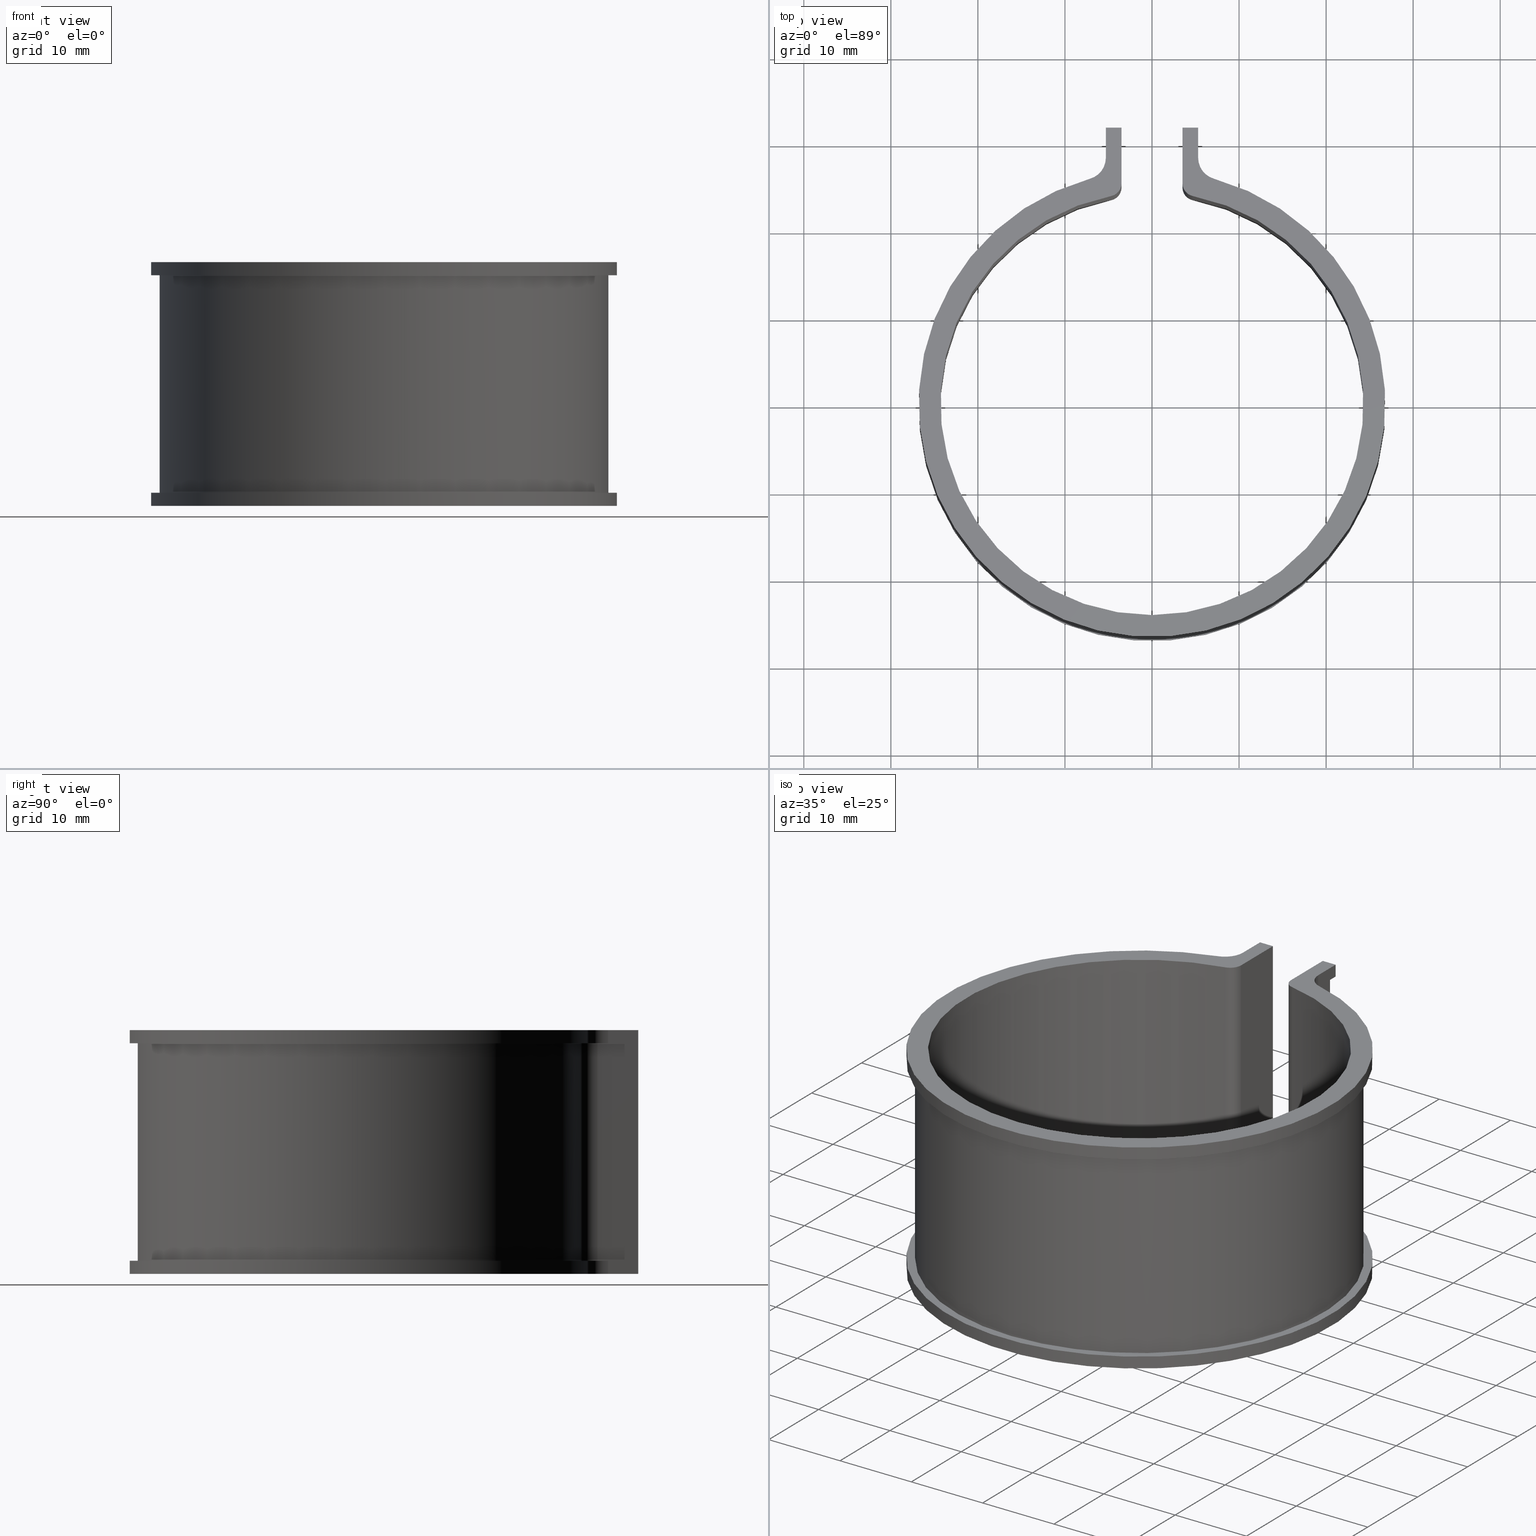
[diagram: canonical four-view strip — front | top / right | iso, engineering-drawing reading convention]
A machine part, canonical four-view strip (front | top / right | iso — engineering-drawing reading convention). The complete STEP part file that produces these views, byte-faithful:
ISO-10303-21;
HEADER;
FILE_DESCRIPTION( ( 'STEP AP203' ), '1' );
FILE_NAME( 'C:/Documents and Settings/JP/�f�X�N�g�b�v/�_�E�����[�h�pCAD�f�[�^/�p�C�v�}�[�J�[/50SU�ESG40/50SU�ESG40.step', '2022-07-20T05:44:30', ( ' ' ), ( ' ' ), 'XStep 1.0', ' ', ' ' );
FILE_SCHEMA( ( 'CONFIG_CONTROL_DESIGN' ) );
ENDSEC;
DATA;
#1 = DESIGN_CONTEXT( '', #27, 'design' );
#2 = APPLICATION_PROTOCOL_DEFINITION( 'INTERNATIONAL STANDARD', 'config_control_design', 1994, #27 );
#3 = PRODUCT_CATEGORY_RELATIONSHIP( 'NONE', 'NONE', #28, #29 );
#4 = DATE_AND_TIME( #30, #31 );
#5 = DATE_TIME_ROLE( 'creation_date' );
#6 = DATE_TIME_ROLE( 'classification_date' );
#7 = PERSON_AND_ORGANIZATION_ROLE( 'creator' );
#8 = PERSON_AND_ORGANIZATION_ROLE( 'design_supplier' );
#9 = PERSON_AND_ORGANIZATION_ROLE( 'classification_officer' );
#10 = PERSON_AND_ORGANIZATION_ROLE( 'design_owner' );
#11 = APPROVAL_PERSON_ORGANIZATION( #32, #33, #34 );
#12 = APPROVAL_DATE_TIME( #4, #33 );
#13 = CC_DESIGN_APPROVAL( #33, ( #35, #36, #37 ) );
#14 = CC_DESIGN_DATE_AND_TIME_ASSIGNMENT( #4, #5, ( #37 ) );
#15 = CC_DESIGN_DATE_AND_TIME_ASSIGNMENT( #4, #6, ( #35 ) );
#16 = CC_DESIGN_PERSON_AND_ORGANIZATION_ASSIGNMENT( #32, #10, ( #38 ) );
#17 = CC_DESIGN_PERSON_AND_ORGANIZATION_ASSIGNMENT( #32, #7, ( #37 ) );
#18 = CC_DESIGN_PERSON_AND_ORGANIZATION_ASSIGNMENT( #32, #7, ( #36 ) );
#19 = CC_DESIGN_PERSON_AND_ORGANIZATION_ASSIGNMENT( #32, #8, ( #36 ) );
#20 = CC_DESIGN_SECURITY_CLASSIFICATION( #35, ( #36 ) );
#21 = CC_DESIGN_PERSON_AND_ORGANIZATION_ASSIGNMENT( #32, #9, ( #35 ) );
#22 = SHAPE_DEFINITION_REPRESENTATION( #39, #40 );
#23 =  ( GEOMETRIC_REPRESENTATION_CONTEXT( 3 )GLOBAL_UNCERTAINTY_ASSIGNED_CONTEXT( ( #43 ) )GLOBAL_UNIT_ASSIGNED_CONTEXT( ( #45, #46, #47 ) )REPRESENTATION_CONTEXT( 'NONE', 'WORKSPACE' ) );
#27 = APPLICATION_CONTEXT( 'CONFIGURATION CONTROLLED 3D DESIGNS OF MECHANICAL PARTS AND ASSEMBLIES' );
#28 = PRODUCT_CATEGORY( 'part', 'NONE' );
#29 = PRODUCT_RELATED_PRODUCT_CATEGORY( 'detail', ' ', ( #38 ) );
#30 = CALENDAR_DATE( 2022, 20, 6 );
#31 = LOCAL_TIME( 14, 44, 30.0000000000000, #49 );
#32 = PERSON_AND_ORGANIZATION( #50, #51 );
#33 = APPROVAL( #52, 'SOLID MODEL' );
#34 = APPROVAL_ROLE( 'APPROVED' );
#35 = SECURITY_CLASSIFICATION( '', '', #53 );
#36 = PRODUCT_DEFINITION_FORMATION_WITH_SPECIFIED_SOURCE( ' ', 'NONE', #38, .NOT_KNOWN. );
#37 = PRODUCT_DEFINITION( 'NONE', 'NONE', #36, #1 );
#38 = PRODUCT( '1', '1', 'PART-1-DESC', ( #54 ) );
#39 = PRODUCT_DEFINITION_SHAPE( 'NONE', 'NONE', #37 );
#40 = ADVANCED_BREP_SHAPE_REPRESENTATION( '1', ( #55, #56 ), #23 );
#43 = UNCERTAINTY_MEASURE_WITH_UNIT( LENGTH_MEASURE( 0.00100000000000000 ), #45, '', '' );
#45 =  ( CONVERSION_BASED_UNIT( 'MILLIMETRE', #59 )LENGTH_UNIT(  )NAMED_UNIT( #62 ) );
#46 =  ( NAMED_UNIT( #64 )PLANE_ANGLE_UNIT(  )SI_UNIT( $, .RADIAN. ) );
#47 =  ( NAMED_UNIT( #64 )SOLID_ANGLE_UNIT(  )SI_UNIT( $, .STERADIAN. ) );
#49 = COORDINATED_UNIVERSAL_TIME_OFFSET( 9, 0, .AHEAD. );
#50 = PERSON( '', 'UNSPECIFIED', $, $, $, $ );
#51 = ORGANIZATION( 'UNSPECIFIED', 'UNSPECIFIED', 'UNSPECIFIED' );
#52 = APPROVAL_STATUS( 'approved' );
#53 = SECURITY_CLASSIFICATION_LEVEL( 'unclassified' );
#54 = MECHANICAL_CONTEXT( '', #27, 'mechanical' );
#55 = MANIFOLD_SOLID_BREP( '1', #70 );
#56 = AXIS2_PLACEMENT_3D( '', #71, #72, #73 );
#59 = LENGTH_MEASURE_WITH_UNIT( LENGTH_MEASURE( 1.00000000000000 ), #74 );
#62 = DIMENSIONAL_EXPONENTS( 1.00000000000000, 0.000000000000000, 0.000000000000000, 0.000000000000000, 0.000000000000000, 0.000000000000000, 0.000000000000000 );
#64 = DIMENSIONAL_EXPONENTS( 0.000000000000000, 0.000000000000000, 0.000000000000000, 0.000000000000000, 0.000000000000000, 0.000000000000000, 0.000000000000000 );
#70 = CLOSED_SHELL( '', ( #75, #76, #77, #78, #79, #80, #81, #82, #83, #84, #85, #86, #87, #88, #89, #90, #91, #92, #93, #94, #95, #96, #97, #98, #99, #100 ) );
#71 = CARTESIAN_POINT( '', ( 0.000000000000000, 0.000000000000000, 0.000000000000000 ) );
#72 = DIRECTION( '', ( 0.000000000000000, 0.000000000000000, 1.00000000000000 ) );
#73 = DIRECTION( '', ( 1.00000000000000, 0.000000000000000, 0.000000000000000 ) );
#74 =  ( NAMED_UNIT( #62 )LENGTH_UNIT(  )SI_UNIT( .MILLI., .METRE. ) );
#75 = ADVANCED_FACE( '', ( #102 ), #103, .T. );
#76 = ADVANCED_FACE( '', ( #104 ), #105, .T. );
#77 = ADVANCED_FACE( '', ( #106 ), #107, .F. );
#78 = ADVANCED_FACE( '', ( #108 ), #109, .F. );
#79 = ADVANCED_FACE( '', ( #110 ), #111, .F. );
#80 = ADVANCED_FACE( '', ( #112 ), #113, .F. );
#81 = ADVANCED_FACE( '', ( #114 ), #115, .T. );
#82 = ADVANCED_FACE( '', ( #116 ), #117, .T. );
#83 = ADVANCED_FACE( '', ( #118 ), #119, .T. );
#84 = ADVANCED_FACE( '', ( #120 ), #121, .F. );
#85 = ADVANCED_FACE( '', ( #122 ), #123, .T. );
#86 = ADVANCED_FACE( '', ( #124 ), #125, .F. );
#87 = ADVANCED_FACE( '', ( #126 ), #127, .F. );
#88 = ADVANCED_FACE( '', ( #128 ), #129, .T. );
#89 = ADVANCED_FACE( '', ( #130 ), #131, .F. );
#90 = ADVANCED_FACE( '', ( #132 ), #133, .T. );
#91 = ADVANCED_FACE( '', ( #134 ), #135, .T. );
#92 = ADVANCED_FACE( '', ( #136 ), #137, .T. );
#93 = ADVANCED_FACE( '', ( #138 ), #139, .F. );
#94 = ADVANCED_FACE( '', ( #140 ), #141, .T. );
#95 = ADVANCED_FACE( '', ( #142 ), #143, .T. );
#96 = ADVANCED_FACE( '', ( #144 ), #145, .T. );
#97 = ADVANCED_FACE( '', ( #146 ), #147, .T. );
#98 = ADVANCED_FACE( '', ( #148 ), #149, .T. );
#99 = ADVANCED_FACE( '', ( #150 ), #151, .F. );
#100 = ADVANCED_FACE( '', ( #152 ), #153, .F. );
#102 = FACE_OUTER_BOUND( '', #154, .T. );
#103 = PLANE( '', #155 );
#104 = FACE_OUTER_BOUND( '', #156, .T. );
#105 = PLANE( '', #157 );
#106 = FACE_OUTER_BOUND( '', #158, .T. );
#107 = PLANE( '', #159 );
#108 = FACE_OUTER_BOUND( '', #160, .T. );
#109 = PLANE( '', #161 );
#110 = FACE_OUTER_BOUND( '', #162, .T. );
#111 = PLANE( '', #163 );
#112 = FACE_OUTER_BOUND( '', #164, .T. );
#113 = CYLINDRICAL_SURFACE( '', #165, 24.3000000000000 );
#114 = FACE_OUTER_BOUND( '', #166, .T. );
#115 = CYLINDRICAL_SURFACE( '', #167, 1.50000000000000 );
#116 = FACE_OUTER_BOUND( '', #168, .T. );
#117 = PLANE( '', #169 );
#118 = FACE_OUTER_BOUND( '', #170, .T. );
#119 = PLANE( '', #171 );
#120 = FACE_OUTER_BOUND( '', #172, .T. );
#121 = CYLINDRICAL_SURFACE( '', #173, 2.50000000000000 );
#122 = FACE_OUTER_BOUND( '', #174, .T. );
#123 = CYLINDRICAL_SURFACE( '', #175, 26.8000000000000 );
#124 = FACE_OUTER_BOUND( '', #176, .T. );
#125 = CYLINDRICAL_SURFACE( '', #177, 2.50000000000000 );
#126 = FACE_OUTER_BOUND( '', #178, .T. );
#127 = PLANE( '', #179 );
#128 = FACE_OUTER_BOUND( '', #180, .T. );
#129 = CYLINDRICAL_SURFACE( '', #181, 1.50000000000000 );
#130 = FACE_OUTER_BOUND( '', #182, .T. );
#131 = CYLINDRICAL_SURFACE( '', #183, 2.50000000000000 );
#132 = FACE_OUTER_BOUND( '', #184, .T. );
#133 = PLANE( '', #185 );
#134 = FACE_OUTER_BOUND( '', #186, .T. );
#135 = PLANE( '', #187 );
#136 = FACE_OUTER_BOUND( '', #188, .T. );
#137 = PLANE( '', #189 );
#138 = FACE_OUTER_BOUND( '', #190, .T. );
#139 = CYLINDRICAL_SURFACE( '', #191, 2.50000000000000 );
#140 = FACE_OUTER_BOUND( '', #192, .T. );
#141 = CYLINDRICAL_SURFACE( '', #193, 26.8000000000000 );
#142 = FACE_OUTER_BOUND( '', #194, .T. );
#143 = PLANE( '', #195 );
#144 = FACE_OUTER_BOUND( '', #196, .T. );
#145 = PLANE( '', #197 );
#146 = FACE_OUTER_BOUND( '', #198, .T. );
#147 = CYLINDRICAL_SURFACE( '', #199, 25.8000000000000 );
#148 = FACE_OUTER_BOUND( '', #200, .T. );
#149 = PLANE( '', #201 );
#150 = FACE_OUTER_BOUND( '', #202, .T. );
#151 = CYLINDRICAL_SURFACE( '', #203, 2.00000000000000 );
#152 = FACE_OUTER_BOUND( '', #204, .T. );
#153 = CYLINDRICAL_SURFACE( '', #205, 2.00000000000000 );
#154 = EDGE_LOOP( '', ( #206, #207, #208, #209 ) );
#155 = AXIS2_PLACEMENT_3D( '', #210, #211, #212 );
#156 = EDGE_LOOP( '', ( #213, #214, #215, #216, #217, #218, #219, #220 ) );
#157 = AXIS2_PLACEMENT_3D( '', #221, #222, #223 );
#158 = EDGE_LOOP( '', ( #224, #225, #226, #227 ) );
#159 = AXIS2_PLACEMENT_3D( '', #228, #229, #230 );
#160 = EDGE_LOOP( '', ( #231, #232, #233, #234, #235, #236, #237, #238, #239, #240, #241, #242 ) );
#161 = AXIS2_PLACEMENT_3D( '', #243, #244, #245 );
#162 = EDGE_LOOP( '', ( #246, #247, #248, #249, #250, #251, #252, #253, #254, #255, #256, #257 ) );
#163 = AXIS2_PLACEMENT_3D( '', #258, #259, #260 );
#164 = EDGE_LOOP( '', ( #261, #262, #263, #264 ) );
#165 = AXIS2_PLACEMENT_3D( '', #265, #266, #267 );
#166 = EDGE_LOOP( '', ( #268, #269, #270, #271 ) );
#167 = AXIS2_PLACEMENT_3D( '', #272, #273, #274 );
#168 = EDGE_LOOP( '', ( #275, #276, #277, #278, #279, #280, #281, #282, #283, #284, #285, #286 ) );
#169 = AXIS2_PLACEMENT_3D( '', #287, #288, #289 );
#170 = EDGE_LOOP( '', ( #290, #291, #292, #293 ) );
#171 = AXIS2_PLACEMENT_3D( '', #294, #295, #296 );
#172 = EDGE_LOOP( '', ( #297, #298, #299, #300 ) );
#173 = AXIS2_PLACEMENT_3D( '', #301, #302, #303 );
#174 = EDGE_LOOP( '', ( #304, #305, #306, #307 ) );
#175 = AXIS2_PLACEMENT_3D( '', #308, #309, #310 );
#176 = EDGE_LOOP( '', ( #311, #312, #313, #314 ) );
#177 = AXIS2_PLACEMENT_3D( '', #315, #316, #317 );
#178 = EDGE_LOOP( '', ( #318, #319, #320, #321 ) );
#179 = AXIS2_PLACEMENT_3D( '', #322, #323, #324 );
#180 = EDGE_LOOP( '', ( #325, #326, #327, #328 ) );
#181 = AXIS2_PLACEMENT_3D( '', #329, #330, #331 );
#182 = EDGE_LOOP( '', ( #332, #333, #334, #335 ) );
#183 = AXIS2_PLACEMENT_3D( '', #336, #337, #338 );
#184 = EDGE_LOOP( '', ( #339, #340, #341, #342, #343, #344, #345, #346 ) );
#185 = AXIS2_PLACEMENT_3D( '', #347, #348, #349 );
#186 = EDGE_LOOP( '', ( #350, #351, #352, #353, #354, #355, #356, #357, #358, #359, #360, #361 ) );
#187 = AXIS2_PLACEMENT_3D( '', #362, #363, #364 );
#188 = EDGE_LOOP( '', ( #365, #366, #367, #368 ) );
#189 = AXIS2_PLACEMENT_3D( '', #369, #370, #371 );
#190 = EDGE_LOOP( '', ( #372, #373, #374, #375 ) );
#191 = AXIS2_PLACEMENT_3D( '', #376, #377, #378 );
#192 = EDGE_LOOP( '', ( #379, #380, #381, #382 ) );
#193 = AXIS2_PLACEMENT_3D( '', #383, #384, #385 );
#194 = EDGE_LOOP( '', ( #386, #387, #388, #389 ) );
#195 = AXIS2_PLACEMENT_3D( '', #390, #391, #392 );
#196 = EDGE_LOOP( '', ( #393, #394, #395, #396 ) );
#197 = AXIS2_PLACEMENT_3D( '', #397, #398, #399 );
#198 = EDGE_LOOP( '', ( #400, #401, #402, #403 ) );
#199 = AXIS2_PLACEMENT_3D( '', #404, #405, #406 );
#200 = EDGE_LOOP( '', ( #407, #408, #409, #410 ) );
#201 = AXIS2_PLACEMENT_3D( '', #411, #412, #413 );
#202 = EDGE_LOOP( '', ( #414, #415, #416, #417 ) );
#203 = AXIS2_PLACEMENT_3D( '', #418, #419, #420 );
#204 = EDGE_LOOP( '', ( #421, #422, #423, #424 ) );
#205 = AXIS2_PLACEMENT_3D( '', #425, #426, #427 );
#206 = ORIENTED_EDGE( '', *, *, #428, .T. );
#207 = ORIENTED_EDGE( '', *, *, #429, .T. );
#208 = ORIENTED_EDGE( '', *, *, #430, .F. );
#209 = ORIENTED_EDGE( '', *, *, #431, .F. );
#210 = CARTESIAN_POINT( '', ( 3.50000000000001, 31.7045271556076, -25.0000000000000 ) );
#211 = DIRECTION( '', ( -1.00000000000000, 8.32667268468868E-017, 0.000000000000000 ) );
#212 = DIRECTION( '', ( 8.32667268468868E-017, 1.00000000000000, 0.000000000000000 ) );
#213 = ORIENTED_EDGE( '', *, *, #432, .T. );
#214 = ORIENTED_EDGE( '', *, *, #433, .T. );
#215 = ORIENTED_EDGE( '', *, *, #434, .F. );
#216 = ORIENTED_EDGE( '', *, *, #435, .F. );
#217 = ORIENTED_EDGE( '', *, *, #436, .F. );
#218 = ORIENTED_EDGE( '', *, *, #437, .T. );
#219 = ORIENTED_EDGE( '', *, *, #438, .T. );
#220 = ORIENTED_EDGE( '', *, *, #439, .F. );
#221 = CARTESIAN_POINT( '', ( -3.50000000000001, 31.7045271556075, -25.0000000000000 ) );
#222 = DIRECTION( '', ( 2.46519032881566E-032, 1.00000000000000, 0.000000000000000 ) );
#223 = DIRECTION( '', ( 1.00000000000000, -2.46519032881566E-032, 0.000000000000000 ) );
#224 = ORIENTED_EDGE( '', *, *, #440, .T. );
#225 = ORIENTED_EDGE( '', *, *, #441, .T. );
#226 = ORIENTED_EDGE( '', *, *, #442, .F. );
#227 = ORIENTED_EDGE( '', *, *, #434, .T. );
#228 = CARTESIAN_POINT( '', ( -5.30000000000000, 31.7045271556075, 1.50000000000000 ) );
#229 = DIRECTION( '', ( 1.00000000000000, -6.12303176911189E-017, 0.000000000000000 ) );
#230 = DIRECTION( '', ( 6.12303176911189E-017, 1.00000000000000, 0.000000000000000 ) );
#231 = ORIENTED_EDGE( '', *, *, #443, .T. );
#232 = ORIENTED_EDGE( '', *, *, #444, .T. );
#233 = ORIENTED_EDGE( '', *, *, #445, .T. );
#234 = ORIENTED_EDGE( '', *, *, #446, .F. );
#235 = ORIENTED_EDGE( '', *, *, #447, .F. );
#236 = ORIENTED_EDGE( '', *, *, #448, .T. );
#237 = ORIENTED_EDGE( '', *, *, #449, .F. );
#238 = ORIENTED_EDGE( '', *, *, #450, .T. );
#239 = ORIENTED_EDGE( '', *, *, #440, .F. );
#240 = ORIENTED_EDGE( '', *, *, #433, .F. );
#241 = ORIENTED_EDGE( '', *, *, #451, .T. );
#242 = ORIENTED_EDGE( '', *, *, #452, .T. );
#243 = CARTESIAN_POINT( '', ( 0.000000000000000, 0.000000000000000, 0.000000000000000 ) );
#244 = DIRECTION( '', ( 0.000000000000000, 0.000000000000000, 1.00000000000000 ) );
#245 = DIRECTION( '', ( 0.000000000000000, 1.00000000000000, 0.000000000000000 ) );
#246 = ORIENTED_EDGE( '', *, *, #453, .F. );
#247 = ORIENTED_EDGE( '', *, *, #454, .T. );
#248 = ORIENTED_EDGE( '', *, *, #455, .F. );
#249 = ORIENTED_EDGE( '', *, *, #456, .T. );
#250 = ORIENTED_EDGE( '', *, *, #428, .F. );
#251 = ORIENTED_EDGE( '', *, *, #457, .F. );
#252 = ORIENTED_EDGE( '', *, *, #458, .F. );
#253 = ORIENTED_EDGE( '', *, *, #459, .T. );
#254 = ORIENTED_EDGE( '', *, *, #460, .F. );
#255 = ORIENTED_EDGE( '', *, *, #461, .T. );
#256 = ORIENTED_EDGE( '', *, *, #462, .F. );
#257 = ORIENTED_EDGE( '', *, *, #437, .F. );
#258 = CARTESIAN_POINT( '', ( 0.000000000000000, 0.000000000000000, -26.5000000000000 ) );
#259 = DIRECTION( '', ( 0.000000000000000, 0.000000000000000, 1.00000000000000 ) );
#260 = DIRECTION( '', ( 0.000000000000000, 1.00000000000000, 0.000000000000000 ) );
#261 = ORIENTED_EDGE( '', *, *, #455, .T. );
#262 = ORIENTED_EDGE( '', *, *, #463, .T. );
#263 = ORIENTED_EDGE( '', *, *, #464, .F. );
#264 = ORIENTED_EDGE( '', *, *, #465, .T. );
#265 = CARTESIAN_POINT( '', ( 2.60208521396521E-015, 1.38777878078145E-014, -25.0000000000000 ) );
#266 = DIRECTION( '', ( 0.000000000000000, 0.000000000000000, -1.00000000000000 ) );
#267 = DIRECTION( '', ( -0.144032921810699, -0.989572896473359, 0.000000000000000 ) );
#268 = ORIENTED_EDGE( '', *, *, #454, .F. );
#269 = ORIENTED_EDGE( '', *, *, #466, .F. );
#270 = ORIENTED_EDGE( '', *, *, #467, .F. );
#271 = ORIENTED_EDGE( '', *, *, #463, .F. );
#272 = CARTESIAN_POINT( '', ( -5.00000000000000, 25.3108672312902, -25.0000000000000 ) );
#273 = DIRECTION( '', ( 0.000000000000000, 0.000000000000000, -1.00000000000000 ) );
#274 = DIRECTION( '', ( 1.00000000000000, 0.000000000000000, 0.000000000000000 ) );
#275 = ORIENTED_EDGE( '', *, *, #464, .T. );
#276 = ORIENTED_EDGE( '', *, *, #467, .T. );
#277 = ORIENTED_EDGE( '', *, *, #468, .T. );
#278 = ORIENTED_EDGE( '', *, *, #435, .T. );
#279 = ORIENTED_EDGE( '', *, *, #442, .T. );
#280 = ORIENTED_EDGE( '', *, *, #469, .T. );
#281 = ORIENTED_EDGE( '', *, *, #470, .T. );
#282 = ORIENTED_EDGE( '', *, *, #471, .T. );
#283 = ORIENTED_EDGE( '', *, *, #472, .T. );
#284 = ORIENTED_EDGE( '', *, *, #473, .T. );
#285 = ORIENTED_EDGE( '', *, *, #430, .T. );
#286 = ORIENTED_EDGE( '', *, *, #474, .T. );
#287 = CARTESIAN_POINT( '', ( 0.000000000000000, 0.000000000000000, 1.50000000000000 ) );
#288 = DIRECTION( '', ( 0.000000000000000, 0.000000000000000, 1.00000000000000 ) );
#289 = DIRECTION( '', ( 0.000000000000000, 1.00000000000000, 0.000000000000000 ) );
#290 = ORIENTED_EDGE( '', *, *, #468, .F. );
#291 = ORIENTED_EDGE( '', *, *, #466, .T. );
#292 = ORIENTED_EDGE( '', *, *, #453, .T. );
#293 = ORIENTED_EDGE( '', *, *, #436, .T. );
#294 = CARTESIAN_POINT( '', ( -3.49999999999999, 24.0466213843026, -25.0000000000000 ) );
#295 = DIRECTION( '', ( 1.00000000000000, -8.32667268468868E-017, 0.000000000000000 ) );
#296 = DIRECTION( '', ( -8.32667268468868E-017, -1.00000000000000, 0.000000000000000 ) );
#297 = ORIENTED_EDGE( '', *, *, #469, .F. );
#298 = ORIENTED_EDGE( '', *, *, #441, .F. );
#299 = ORIENTED_EDGE( '', *, *, #450, .F. );
#300 = ORIENTED_EDGE( '', *, *, #475, .F. );
#301 = CARTESIAN_POINT( '', ( -7.80000000000000, 28.2426981713858, 1.50000000000000 ) );
#302 = DIRECTION( '', ( 0.000000000000000, 0.000000000000000, 1.00000000000000 ) );
#303 = DIRECTION( '', ( -1.00000000000000, 0.000000000000000, 0.000000000000000 ) );
#304 = ORIENTED_EDGE( '', *, *, #470, .F. );
#305 = ORIENTED_EDGE( '', *, *, #475, .T. );
#306 = ORIENTED_EDGE( '', *, *, #449, .T. );
#307 = ORIENTED_EDGE( '', *, *, #476, .T. );
#308 = CARTESIAN_POINT( '', ( 0.000000000000000, 0.000000000000000, 1.50000000000000 ) );
#309 = DIRECTION( '', ( 0.000000000000000, 0.000000000000000, 1.00000000000000 ) );
#310 = DIRECTION( '', ( 0.000000000000000, -1.00000000000000, 0.000000000000000 ) );
#311 = ORIENTED_EDGE( '', *, *, #471, .F. );
#312 = ORIENTED_EDGE( '', *, *, #476, .F. );
#313 = ORIENTED_EDGE( '', *, *, #448, .F. );
#314 = ORIENTED_EDGE( '', *, *, #477, .F. );
#315 = CARTESIAN_POINT( '', ( 7.80000000000000, 28.2426981713858, 1.50000000000000 ) );
#316 = DIRECTION( '', ( 0.000000000000000, 0.000000000000000, 1.00000000000000 ) );
#317 = DIRECTION( '', ( -1.00000000000000, 0.000000000000000, 0.000000000000000 ) );
#318 = ORIENTED_EDGE( '', *, *, #472, .F. );
#319 = ORIENTED_EDGE( '', *, *, #477, .T. );
#320 = ORIENTED_EDGE( '', *, *, #447, .T. );
#321 = ORIENTED_EDGE( '', *, *, #478, .F. );
#322 = CARTESIAN_POINT( '', ( 5.30000000000000, 26.2707061191739, 1.50000000000000 ) );
#323 = DIRECTION( '', ( -1.00000000000000, 6.12303176911189E-017, 0.000000000000000 ) );
#324 = DIRECTION( '', ( -6.12303176911189E-017, -1.00000000000000, 0.000000000000000 ) );
#325 = ORIENTED_EDGE( '', *, *, #456, .F. );
#326 = ORIENTED_EDGE( '', *, *, #465, .F. );
#327 = ORIENTED_EDGE( '', *, *, #474, .F. );
#328 = ORIENTED_EDGE( '', *, *, #429, .F. );
#329 = CARTESIAN_POINT( '', ( 5.00000000000001, 25.3108672312902, -25.0000000000000 ) );
#330 = DIRECTION( '', ( 0.000000000000000, 0.000000000000000, -1.00000000000000 ) );
#331 = DIRECTION( '', ( 1.00000000000000, 0.000000000000000, 0.000000000000000 ) );
#332 = ORIENTED_EDGE( '', *, *, #459, .F. );
#333 = ORIENTED_EDGE( '', *, *, #479, .F. );
#334 = ORIENTED_EDGE( '', *, *, #480, .F. );
#335 = ORIENTED_EDGE( '', *, *, #481, .F. );
#336 = CARTESIAN_POINT( '', ( 7.80000000000000, 28.2426981713858, -26.5000000000000 ) );
#337 = DIRECTION( '', ( 0.000000000000000, 0.000000000000000, -1.00000000000000 ) );
#338 = DIRECTION( '', ( 1.00000000000000, 0.000000000000000, 0.000000000000000 ) );
#339 = ORIENTED_EDGE( '', *, *, #431, .T. );
#340 = ORIENTED_EDGE( '', *, *, #473, .F. );
#341 = ORIENTED_EDGE( '', *, *, #478, .T. );
#342 = ORIENTED_EDGE( '', *, *, #446, .T. );
#343 = ORIENTED_EDGE( '', *, *, #482, .F. );
#344 = ORIENTED_EDGE( '', *, *, #483, .F. );
#345 = ORIENTED_EDGE( '', *, *, #484, .F. );
#346 = ORIENTED_EDGE( '', *, *, #457, .T. );
#347 = CARTESIAN_POINT( '', ( 4.49999999999999, 31.7045271556075, -25.0000000000000 ) );
#348 = DIRECTION( '', ( 2.46519032881566E-032, 1.00000000000000, 0.000000000000000 ) );
#349 = DIRECTION( '', ( 1.00000000000000, -2.46519032881566E-032, 0.000000000000000 ) );
#350 = ORIENTED_EDGE( '', *, *, #485, .F. );
#351 = ORIENTED_EDGE( '', *, *, #486, .T. );
#352 = ORIENTED_EDGE( '', *, *, #487, .F. );
#353 = ORIENTED_EDGE( '', *, *, #488, .T. );
#354 = ORIENTED_EDGE( '', *, *, #489, .F. );
#355 = ORIENTED_EDGE( '', *, *, #439, .T. );
#356 = ORIENTED_EDGE( '', *, *, #490, .T. );
#357 = ORIENTED_EDGE( '', *, *, #491, .T. );
#358 = ORIENTED_EDGE( '', *, *, #492, .T. );
#359 = ORIENTED_EDGE( '', *, *, #480, .T. );
#360 = ORIENTED_EDGE( '', *, *, #493, .T. );
#361 = ORIENTED_EDGE( '', *, *, #483, .T. );
#362 = CARTESIAN_POINT( '', ( 0.000000000000000, 0.000000000000000, -25.0000000000000 ) );
#363 = DIRECTION( '', ( 0.000000000000000, 0.000000000000000, 1.00000000000000 ) );
#364 = DIRECTION( '', ( 0.000000000000000, 1.00000000000000, 0.000000000000000 ) );
#365 = ORIENTED_EDGE( '', *, *, #462, .T. );
#366 = ORIENTED_EDGE( '', *, *, #494, .T. );
#367 = ORIENTED_EDGE( '', *, *, #490, .F. );
#368 = ORIENTED_EDGE( '', *, *, #438, .F. );
#369 = CARTESIAN_POINT( '', ( -5.30000000000000, 31.7045271556075, -26.5000000000000 ) );
#370 = DIRECTION( '', ( -1.00000000000000, 6.12303176911189E-017, 0.000000000000000 ) );
#371 = DIRECTION( '', ( 6.12303176911189E-017, 1.00000000000000, 0.000000000000000 ) );
#372 = ORIENTED_EDGE( '', *, *, #461, .F. );
#373 = ORIENTED_EDGE( '', *, *, #495, .F. );
#374 = ORIENTED_EDGE( '', *, *, #491, .F. );
#375 = ORIENTED_EDGE( '', *, *, #494, .F. );
#376 = CARTESIAN_POINT( '', ( -7.80000000000000, 28.2426981713858, -26.5000000000000 ) );
#377 = DIRECTION( '', ( 0.000000000000000, 0.000000000000000, -1.00000000000000 ) );
#378 = DIRECTION( '', ( 1.00000000000000, 0.000000000000000, 0.000000000000000 ) );
#379 = ORIENTED_EDGE( '', *, *, #492, .F. );
#380 = ORIENTED_EDGE( '', *, *, #495, .T. );
#381 = ORIENTED_EDGE( '', *, *, #460, .T. );
#382 = ORIENTED_EDGE( '', *, *, #481, .T. );
#383 = CARTESIAN_POINT( '', ( 0.000000000000000, 0.000000000000000, -26.5000000000000 ) );
#384 = DIRECTION( '', ( 0.000000000000000, 0.000000000000000, -1.00000000000000 ) );
#385 = DIRECTION( '', ( 0.000000000000000, 1.00000000000000, 0.000000000000000 ) );
#386 = ORIENTED_EDGE( '', *, *, #493, .F. );
#387 = ORIENTED_EDGE( '', *, *, #479, .T. );
#388 = ORIENTED_EDGE( '', *, *, #458, .T. );
#389 = ORIENTED_EDGE( '', *, *, #484, .T. );
#390 = CARTESIAN_POINT( '', ( 5.30000000000000, 26.2707061191739, -26.5000000000000 ) );
#391 = DIRECTION( '', ( 1.00000000000000, -6.12303176911189E-017, 0.000000000000000 ) );
#392 = DIRECTION( '', ( -6.12303176911189E-017, -1.00000000000000, 0.000000000000000 ) );
#393 = ORIENTED_EDGE( '', *, *, #489, .T. );
#394 = ORIENTED_EDGE( '', *, *, #496, .T. );
#395 = ORIENTED_EDGE( '', *, *, #451, .F. );
#396 = ORIENTED_EDGE( '', *, *, #432, .F. );
#397 = CARTESIAN_POINT( '', ( -4.50000000000000, 31.7045271556076, -25.0000000000000 ) );
#398 = DIRECTION( '', ( -1.00000000000000, 8.32667268468868E-017, 0.000000000000000 ) );
#399 = DIRECTION( '', ( 8.32667268468868E-017, 1.00000000000000, 0.000000000000000 ) );
#400 = ORIENTED_EDGE( '', *, *, #487, .T. );
#401 = ORIENTED_EDGE( '', *, *, #497, .T. );
#402 = ORIENTED_EDGE( '', *, *, #443, .F. );
#403 = ORIENTED_EDGE( '', *, *, #498, .T. );
#404 = CARTESIAN_POINT( '', ( 2.60208521396521E-015, 1.38777878078145E-014, -25.0000000000000 ) );
#405 = DIRECTION( '', ( 0.000000000000000, 0.000000000000000, -1.00000000000000 ) );
#406 = DIRECTION( '', ( -0.144032921810699, -0.989572896473359, 0.000000000000000 ) );
#407 = ORIENTED_EDGE( '', *, *, #445, .F. );
#408 = ORIENTED_EDGE( '', *, *, #499, .T. );
#409 = ORIENTED_EDGE( '', *, *, #485, .T. );
#410 = ORIENTED_EDGE( '', *, *, #482, .T. );
#411 = CARTESIAN_POINT( '', ( 4.50000000000000, 25.4045271556075, -25.0000000000000 ) );
#412 = DIRECTION( '', ( 1.00000000000000, -8.32667268468868E-017, 0.000000000000000 ) );
#413 = DIRECTION( '', ( -8.32667268468868E-017, -1.00000000000000, 0.000000000000000 ) );
#414 = ORIENTED_EDGE( '', *, *, #486, .F. );
#415 = ORIENTED_EDGE( '', *, *, #499, .F. );
#416 = ORIENTED_EDGE( '', *, *, #444, .F. );
#417 = ORIENTED_EDGE( '', *, *, #497, .F. );
#418 = CARTESIAN_POINT( '', ( 6.50000000000001, 27.0294284068310, -25.0000000000000 ) );
#419 = DIRECTION( '', ( 0.000000000000000, 0.000000000000000, -1.00000000000000 ) );
#420 = DIRECTION( '', ( 1.00000000000000, 0.000000000000000, 0.000000000000000 ) );
#421 = ORIENTED_EDGE( '', *, *, #488, .F. );
#422 = ORIENTED_EDGE( '', *, *, #498, .F. );
#423 = ORIENTED_EDGE( '', *, *, #452, .F. );
#424 = ORIENTED_EDGE( '', *, *, #496, .F. );
#425 = CARTESIAN_POINT( '', ( -6.50000000000000, 27.0294284068310, -25.0000000000000 ) );
#426 = DIRECTION( '', ( 0.000000000000000, 0.000000000000000, -1.00000000000000 ) );
#427 = DIRECTION( '', ( 1.00000000000000, 0.000000000000000, 0.000000000000000 ) );
#428 = EDGE_CURVE( '', #500, #501, #502, .T. );
#429 = EDGE_CURVE( '', #501, #503, #504, .T. );
#430 = EDGE_CURVE( '', #505, #503, #506, .T. );
#431 = EDGE_CURVE( '', #500, #505, #507, .T. );
#432 = EDGE_CURVE( '', #508, #509, #510, .T. );
#433 = EDGE_CURVE( '', #509, #511, #512, .T. );
#434 = EDGE_CURVE( '', #513, #511, #514, .T. );
#435 = EDGE_CURVE( '', #515, #513, #516, .T. );
#436 = EDGE_CURVE( '', #517, #515, #518, .T. );
#437 = EDGE_CURVE( '', #517, #519, #520, .T. );
#438 = EDGE_CURVE( '', #519, #521, #522, .T. );
#439 = EDGE_CURVE( '', #508, #521, #523, .T. );
#440 = EDGE_CURVE( '', #511, #524, #525, .T. );
#441 = EDGE_CURVE( '', #524, #526, #527, .T. );
#442 = EDGE_CURVE( '', #513, #526, #528, .T. );
#443 = EDGE_CURVE( '', #529, #530, #531, .T. );
#444 = EDGE_CURVE( '', #530, #532, #533, .F. );
#445 = EDGE_CURVE( '', #532, #534, #535, .T. );
#446 = EDGE_CURVE( '', #536, #534, #537, .T. );
#447 = EDGE_CURVE( '', #538, #536, #539, .T. );
#448 = EDGE_CURVE( '', #538, #540, #541, .T. );
#449 = EDGE_CURVE( '', #542, #540, #543, .T. );
#450 = EDGE_CURVE( '', #542, #524, #544, .T. );
#451 = EDGE_CURVE( '', #509, #545, #546, .T. );
#452 = EDGE_CURVE( '', #545, #529, #547, .F. );
#453 = EDGE_CURVE( '', #548, #517, #549, .T. );
#454 = EDGE_CURVE( '', #548, #550, #551, .F. );
#455 = EDGE_CURVE( '', #552, #550, #553, .T. );
#456 = EDGE_CURVE( '', #552, #501, #554, .F. );
#457 = EDGE_CURVE( '', #555, #500, #556, .T. );
#458 = EDGE_CURVE( '', #557, #555, #558, .T. );
#459 = EDGE_CURVE( '', #557, #559, #560, .T. );
#460 = EDGE_CURVE( '', #561, #559, #562, .T. );
#461 = EDGE_CURVE( '', #561, #563, #564, .T. );
#462 = EDGE_CURVE( '', #519, #563, #565, .T. );
#463 = EDGE_CURVE( '', #550, #566, #567, .T. );
#464 = EDGE_CURVE( '', #568, #566, #569, .T. );
#465 = EDGE_CURVE( '', #568, #552, #570, .F. );
#466 = EDGE_CURVE( '', #571, #548, #572, .F. );
#467 = EDGE_CURVE( '', #566, #571, #573, .T. );
#468 = EDGE_CURVE( '', #571, #515, #574, .T. );
#469 = EDGE_CURVE( '', #526, #575, #576, .F. );
#470 = EDGE_CURVE( '', #575, #577, #578, .T. );
#471 = EDGE_CURVE( '', #577, #579, #580, .F. );
#472 = EDGE_CURVE( '', #579, #581, #582, .T. );
#473 = EDGE_CURVE( '', #581, #505, #583, .T. );
#474 = EDGE_CURVE( '', #503, #568, #584, .T. );
#475 = EDGE_CURVE( '', #575, #542, #585, .T. );
#476 = EDGE_CURVE( '', #540, #577, #586, .F. );
#477 = EDGE_CURVE( '', #579, #538, #587, .F. );
#478 = EDGE_CURVE( '', #581, #536, #588, .T. );
#479 = EDGE_CURVE( '', #589, #557, #590, .T. );
#480 = EDGE_CURVE( '', #591, #589, #592, .F. );
#481 = EDGE_CURVE( '', #559, #591, #593, .T. );
#482 = EDGE_CURVE( '', #594, #534, #595, .T. );
#483 = EDGE_CURVE( '', #596, #594, #597, .T. );
#484 = EDGE_CURVE( '', #555, #596, #598, .T. );
#485 = EDGE_CURVE( '', #599, #594, #600, .T. );
#486 = EDGE_CURVE( '', #599, #601, #602, .T. );
#487 = EDGE_CURVE( '', #603, #601, #604, .T. );
#488 = EDGE_CURVE( '', #603, #605, #606, .T. );
#489 = EDGE_CURVE( '', #508, #605, #607, .T. );
#490 = EDGE_CURVE( '', #521, #608, #609, .T. );
#491 = EDGE_CURVE( '', #608, #610, #611, .F. );
#492 = EDGE_CURVE( '', #610, #591, #612, .T. );
#493 = EDGE_CURVE( '', #589, #596, #613, .T. );
#494 = EDGE_CURVE( '', #563, #608, #614, .F. );
#495 = EDGE_CURVE( '', #610, #561, #615, .F. );
#496 = EDGE_CURVE( '', #605, #545, #616, .F. );
#497 = EDGE_CURVE( '', #601, #530, #617, .T. );
#498 = EDGE_CURVE( '', #529, #603, #618, .F. );
#499 = EDGE_CURVE( '', #532, #599, #619, .T. );
#500 = VERTEX_POINT( '', #620 );
#501 = VERTEX_POINT( '', #621 );
#502 = LINE( '', #622, #623 );
#503 = VERTEX_POINT( '', #624 );
#504 = LINE( '', #625, #626 );
#505 = VERTEX_POINT( '', #627 );
#506 = LINE( '', #628, #629 );
#507 = LINE( '', #630, #631 );
#508 = VERTEX_POINT( '', #632 );
#509 = VERTEX_POINT( '', #633 );
#510 = LINE( '', #634, #635 );
#511 = VERTEX_POINT( '', #636 );
#512 = LINE( '', #637, #638 );
#513 = VERTEX_POINT( '', #639 );
#514 = LINE( '', #640, #641 );
#515 = VERTEX_POINT( '', #642 );
#516 = LINE( '', #643, #644 );
#517 = VERTEX_POINT( '', #645 );
#518 = LINE( '', #646, #647 );
#519 = VERTEX_POINT( '', #648 );
#520 = LINE( '', #649, #650 );
#521 = VERTEX_POINT( '', #651 );
#522 = LINE( '', #652, #653 );
#523 = LINE( '', #654, #655 );
#524 = VERTEX_POINT( '', #656 );
#525 = LINE( '', #657, #658 );
#526 = VERTEX_POINT( '', #659 );
#527 = LINE( '', #660, #661 );
#528 = LINE( '', #662, #663 );
#529 = VERTEX_POINT( '', #664 );
#530 = VERTEX_POINT( '', #665 );
#531 = CIRCLE( '', #666, 25.8000000000000 );
#532 = VERTEX_POINT( '', #667 );
#533 = CIRCLE( '', #668, 2.00000000000000 );
#534 = VERTEX_POINT( '', #669 );
#535 = LINE( '', #670, #671 );
#536 = VERTEX_POINT( '', #672 );
#537 = LINE( '', #673, #674 );
#538 = VERTEX_POINT( '', #675 );
#539 = LINE( '', #676, #677 );
#540 = VERTEX_POINT( '', #678 );
#541 = CIRCLE( '', #679, 2.50000000000000 );
#542 = VERTEX_POINT( '', #680 );
#543 = CIRCLE( '', #681, 26.8000000000000 );
#544 = CIRCLE( '', #682, 2.50000000000000 );
#545 = VERTEX_POINT( '', #683 );
#546 = LINE( '', #684, #685 );
#547 = CIRCLE( '', #686, 2.00000000000000 );
#548 = VERTEX_POINT( '', #687 );
#549 = LINE( '', #688, #689 );
#550 = VERTEX_POINT( '', #690 );
#551 = CIRCLE( '', #691, 1.50000000000000 );
#552 = VERTEX_POINT( '', #692 );
#553 = CIRCLE( '', #693, 24.3000000000000 );
#554 = CIRCLE( '', #694, 1.50000000000000 );
#555 = VERTEX_POINT( '', #695 );
#556 = LINE( '', #696, #697 );
#557 = VERTEX_POINT( '', #698 );
#558 = LINE( '', #699, #700 );
#559 = VERTEX_POINT( '', #701 );
#560 = CIRCLE( '', #702, 2.50000000000000 );
#561 = VERTEX_POINT( '', #703 );
#562 = CIRCLE( '', #704, 26.8000000000000 );
#563 = VERTEX_POINT( '', #705 );
#564 = CIRCLE( '', #706, 2.50000000000000 );
#565 = LINE( '', #707, #708 );
#566 = VERTEX_POINT( '', #709 );
#567 = LINE( '', #710, #711 );
#568 = VERTEX_POINT( '', #712 );
#569 = CIRCLE( '', #713, 24.3000000000000 );
#570 = LINE( '', #714, #715 );
#571 = VERTEX_POINT( '', #716 );
#572 = LINE( '', #717, #718 );
#573 = CIRCLE( '', #719, 1.50000000000000 );
#574 = LINE( '', #720, #721 );
#575 = VERTEX_POINT( '', #722 );
#576 = CIRCLE( '', #723, 2.50000000000000 );
#577 = VERTEX_POINT( '', #724 );
#578 = CIRCLE( '', #725, 26.8000000000000 );
#579 = VERTEX_POINT( '', #726 );
#580 = CIRCLE( '', #727, 2.50000000000000 );
#581 = VERTEX_POINT( '', #728 );
#582 = LINE( '', #729, #730 );
#583 = LINE( '', #731, #732 );
#584 = CIRCLE( '', #733, 1.50000000000000 );
#585 = LINE( '', #734, #735 );
#586 = LINE( '', #736, #737 );
#587 = LINE( '', #738, #739 );
#588 = LINE( '', #740, #741 );
#589 = VERTEX_POINT( '', #742 );
#590 = LINE( '', #743, #744 );
#591 = VERTEX_POINT( '', #745 );
#592 = CIRCLE( '', #746, 2.50000000000000 );
#593 = LINE( '', #747, #748 );
#594 = VERTEX_POINT( '', #749 );
#595 = LINE( '', #750, #751 );
#596 = VERTEX_POINT( '', #752 );
#597 = LINE( '', #753, #754 );
#598 = LINE( '', #755, #756 );
#599 = VERTEX_POINT( '', #757 );
#600 = LINE( '', #758, #759 );
#601 = VERTEX_POINT( '', #760 );
#602 = CIRCLE( '', #761, 2.00000000000000 );
#603 = VERTEX_POINT( '', #762 );
#604 = CIRCLE( '', #763, 25.8000000000000 );
#605 = VERTEX_POINT( '', #764 );
#606 = CIRCLE( '', #765, 2.00000000000000 );
#607 = LINE( '', #766, #767 );
#608 = VERTEX_POINT( '', #768 );
#609 = LINE( '', #769, #770 );
#610 = VERTEX_POINT( '', #771 );
#611 = CIRCLE( '', #772, 2.50000000000000 );
#612 = CIRCLE( '', #773, 26.8000000000000 );
#613 = LINE( '', #774, #775 );
#614 = LINE( '', #776, #777 );
#615 = LINE( '', #778, #779 );
#616 = LINE( '', #780, #781 );
#617 = LINE( '', #782, #783 );
#618 = LINE( '', #784, #785 );
#619 = LINE( '', #786, #787 );
#620 = CARTESIAN_POINT( '', ( 3.50000000000003, 31.7045271556075, -26.5000000000000 ) );
#621 = CARTESIAN_POINT( '', ( 3.50000000000000, 25.3108672312902, -26.5000000000000 ) );
#622 = CARTESIAN_POINT( '', ( 3.50000000000000, 31.7045271556075, -26.5000000000000 ) );
#623 = VECTOR( '', #788, 1000.00000000000 );
#624 = CARTESIAN_POINT( '', ( 3.50000000000000, 25.3108672312902, 1.50000000000000 ) );
#625 = CARTESIAN_POINT( '', ( 3.50000000000001, 25.3108672312902, -25.0000000000000 ) );
#626 = VECTOR( '', #789, 1000.00000000000 );
#627 = CARTESIAN_POINT( '', ( 3.50000000000003, 31.7045271556075, 1.50000000000000 ) );
#628 = CARTESIAN_POINT( '', ( 3.50000000000000, 31.7045271556075, 1.50000000000000 ) );
#629 = VECTOR( '', #790, 1000.00000000000 );
#630 = CARTESIAN_POINT( '', ( 3.50000000000000, 31.7045271556075, -25.0000000000000 ) );
#631 = VECTOR( '', #791, 1000.00000000000 );
#632 = CARTESIAN_POINT( '', ( -4.50000000000001, 31.7045271556075, -25.0000000000000 ) );
#633 = CARTESIAN_POINT( '', ( -4.50000000000002, 31.7045271556075, 0.000000000000000 ) );
#634 = CARTESIAN_POINT( '', ( -4.50000000000002, 31.7045271556075, -25.0000000000000 ) );
#635 = VECTOR( '', #792, 1000.00000000000 );
#636 = CARTESIAN_POINT( '', ( -5.30000000000000, 31.7045271556075, 0.000000000000000 ) );
#637 = CARTESIAN_POINT( '', ( -3.50000000000000, 31.7045271556075, 0.000000000000000 ) );
#638 = VECTOR( '', #793, 1000.00000000000 );
#639 = CARTESIAN_POINT( '', ( -5.30000000000000, 31.7045271556075, 1.50000000000000 ) );
#640 = CARTESIAN_POINT( '', ( -5.30000000000000, 31.7045271556075, 1.50000000000000 ) );
#641 = VECTOR( '', #794, 1000.00000000000 );
#642 = CARTESIAN_POINT( '', ( -3.50000000000000, 31.7045271556075, 1.50000000000000 ) );
#643 = CARTESIAN_POINT( '', ( -3.50000000000000, 31.7045271556075, 1.50000000000000 ) );
#644 = VECTOR( '', #795, 1000.00000000000 );
#645 = CARTESIAN_POINT( '', ( -3.50000000000000, 31.7045271556075, -26.5000000000000 ) );
#646 = CARTESIAN_POINT( '', ( -3.50000000000000, 31.7045271556076, -25.0000000000000 ) );
#647 = VECTOR( '', #796, 1000.00000000000 );
#648 = CARTESIAN_POINT( '', ( -5.30000000000000, 31.7045271556075, -26.5000000000000 ) );
#649 = CARTESIAN_POINT( '', ( -3.50000000000000, 31.7045271556075, -26.5000000000000 ) );
#650 = VECTOR( '', #797, 1000.00000000000 );
#651 = CARTESIAN_POINT( '', ( -5.30000000000000, 31.7045271556075, -25.0000000000000 ) );
#652 = CARTESIAN_POINT( '', ( -5.30000000000000, 31.7045271556075, -26.5000000000000 ) );
#653 = VECTOR( '', #798, 1000.00000000000 );
#654 = CARTESIAN_POINT( '', ( -3.50000000000000, 31.7045271556075, -25.0000000000000 ) );
#655 = VECTOR( '', #799, 1000.00000000000 );
#656 = CARTESIAN_POINT( '', ( -5.30000000000000, 28.2426981713858, 0.000000000000000 ) );
#657 = CARTESIAN_POINT( '', ( -5.30000000000000, 31.7045271556075, 0.000000000000000 ) );
#658 = VECTOR( '', #800, 1000.00000000000 );
#659 = CARTESIAN_POINT( '', ( -5.30000000000000, 28.2426981713858, 1.50000000000000 ) );
#660 = CARTESIAN_POINT( '', ( -5.30000000000000, 28.2426981713858, 1.50000000000000 ) );
#661 = VECTOR( '', #801, 1000.00000000000 );
#662 = CARTESIAN_POINT( '', ( -5.30000000000000, 31.7045271556075, 1.50000000000000 ) );
#663 = VECTOR( '', #802, 1000.00000000000 );
#664 = CARTESIAN_POINT( '', ( -6.03237410071942, 25.0848652120949, 0.000000000000000 ) );
#665 = CARTESIAN_POINT( '', ( 6.03237410071943, 25.0848652120949, 0.000000000000000 ) );
#666 = AXIS2_PLACEMENT_3D( '', #803, #804, #805 );
#667 = CARTESIAN_POINT( '', ( 4.50000000000000, 27.0294284068310, 0.000000000000000 ) );
#668 = AXIS2_PLACEMENT_3D( '', #806, #807, #808 );
#669 = CARTESIAN_POINT( '', ( 4.50000000000001, 31.7045271556075, 0.000000000000000 ) );
#670 = CARTESIAN_POINT( '', ( 4.50000000000000, 25.4045271556075, 0.000000000000000 ) );
#671 = VECTOR( '', #809, 1000.00000000000 );
#672 = CARTESIAN_POINT( '', ( 5.30000000000000, 31.7045271556076, 0.000000000000000 ) );
#673 = CARTESIAN_POINT( '', ( 5.30000000000003, 31.7045271556075, 0.000000000000000 ) );
#674 = VECTOR( '', #810, 1000.00000000000 );
#675 = CARTESIAN_POINT( '', ( 5.30000000000000, 28.2426981713858, 0.000000000000000 ) );
#676 = CARTESIAN_POINT( '', ( 5.30000000000000, 26.2707061191739, 0.000000000000000 ) );
#677 = VECTOR( '', #811, 1000.00000000000 );
#678 = CARTESIAN_POINT( '', ( 7.13447098976109, 25.8329116379911, 0.000000000000000 ) );
#679 = AXIS2_PLACEMENT_3D( '', #812, #813, #814 );
#680 = CARTESIAN_POINT( '', ( -7.13447098976109, 25.8329116379911, 0.000000000000000 ) );
#681 = AXIS2_PLACEMENT_3D( '', #815, #816, #817 );
#682 = AXIS2_PLACEMENT_3D( '', #818, #819, #820 );
#683 = CARTESIAN_POINT( '', ( -4.50000000000000, 27.0294284068310, 0.000000000000000 ) );
#684 = CARTESIAN_POINT( '', ( -4.50000000000000, 31.7045271556076, 0.000000000000000 ) );
#685 = VECTOR( '', #821, 1000.00000000000 );
#686 = AXIS2_PLACEMENT_3D( '', #822, #823, #824 );
#687 = CARTESIAN_POINT( '', ( -3.50000000000000, 25.3108672312902, -26.5000000000000 ) );
#688 = CARTESIAN_POINT( '', ( -3.50000000000000, 24.0466213843026, -26.5000000000000 ) );
#689 = VECTOR( '', #825, 1000.00000000000 );
#690 = CARTESIAN_POINT( '', ( -4.70930232558139, 23.8393051829594, -26.5000000000000 ) );
#691 = AXIS2_PLACEMENT_3D( '', #826, #827, #828 );
#692 = CARTESIAN_POINT( '', ( 4.70930232558140, 23.8393051829594, -26.5000000000000 ) );
#693 = AXIS2_PLACEMENT_3D( '', #829, #830, #831 );
#694 = AXIS2_PLACEMENT_3D( '', #832, #833, #834 );
#695 = CARTESIAN_POINT( '', ( 5.30000000000000, 31.7045271556076, -26.5000000000000 ) );
#696 = CARTESIAN_POINT( '', ( 5.30000000000003, 31.7045271556075, -26.5000000000000 ) );
#697 = VECTOR( '', #835, 1000.00000000000 );
#698 = CARTESIAN_POINT( '', ( 5.30000000000000, 28.2426981713858, -26.5000000000000 ) );
#699 = CARTESIAN_POINT( '', ( 5.30000000000000, 26.2707061191739, -26.5000000000000 ) );
#700 = VECTOR( '', #836, 1000.00000000000 );
#701 = CARTESIAN_POINT( '', ( 7.13447098976109, 25.8329116379911, -26.5000000000000 ) );
#702 = AXIS2_PLACEMENT_3D( '', #837, #838, #839 );
#703 = CARTESIAN_POINT( '', ( -7.13447098976109, 25.8329116379911, -26.5000000000000 ) );
#704 = AXIS2_PLACEMENT_3D( '', #840, #841, #842 );
#705 = CARTESIAN_POINT( '', ( -5.30000000000000, 28.2426981713858, -26.5000000000000 ) );
#706 = AXIS2_PLACEMENT_3D( '', #843, #844, #845 );
#707 = CARTESIAN_POINT( '', ( -5.30000000000000, 31.7045271556075, -26.5000000000000 ) );
#708 = VECTOR( '', #846, 1000.00000000000 );
#709 = CARTESIAN_POINT( '', ( -4.70930232558139, 23.8393051829594, 1.50000000000000 ) );
#710 = CARTESIAN_POINT( '', ( -4.70930232558139, 23.8393051829594, -25.0000000000000 ) );
#711 = VECTOR( '', #847, 1000.00000000000 );
#712 = CARTESIAN_POINT( '', ( 4.70930232558140, 23.8393051829594, 1.50000000000000 ) );
#713 = AXIS2_PLACEMENT_3D( '', #848, #849, #850 );
#714 = CARTESIAN_POINT( '', ( 4.70930232558140, 23.8393051829594, -25.0000000000000 ) );
#715 = VECTOR( '', #851, 1000.00000000000 );
#716 = CARTESIAN_POINT( '', ( -3.50000000000000, 25.3108672312902, 1.50000000000000 ) );
#717 = CARTESIAN_POINT( '', ( -3.49999999999999, 25.3108672312902, -25.0000000000000 ) );
#718 = VECTOR( '', #852, 1000.00000000000 );
#719 = AXIS2_PLACEMENT_3D( '', #853, #854, #855 );
#720 = CARTESIAN_POINT( '', ( -3.50000000000000, 24.0466213843026, 1.50000000000000 ) );
#721 = VECTOR( '', #856, 1000.00000000000 );
#722 = CARTESIAN_POINT( '', ( -7.13447098976109, 25.8329116379911, 1.50000000000000 ) );
#723 = AXIS2_PLACEMENT_3D( '', #857, #858, #859 );
#724 = CARTESIAN_POINT( '', ( 7.13447098976109, 25.8329116379911, 1.50000000000000 ) );
#725 = AXIS2_PLACEMENT_3D( '', #860, #861, #862 );
#726 = CARTESIAN_POINT( '', ( 5.30000000000000, 28.2426981713858, 1.50000000000000 ) );
#727 = AXIS2_PLACEMENT_3D( '', #863, #864, #865 );
#728 = CARTESIAN_POINT( '', ( 5.30000000000000, 31.7045271556076, 1.50000000000000 ) );
#729 = CARTESIAN_POINT( '', ( 5.30000000000000, 26.2707061191739, 1.50000000000000 ) );
#730 = VECTOR( '', #866, 1000.00000000000 );
#731 = CARTESIAN_POINT( '', ( 5.30000000000003, 31.7045271556075, 1.50000000000000 ) );
#732 = VECTOR( '', #867, 1000.00000000000 );
#733 = AXIS2_PLACEMENT_3D( '', #868, #869, #870 );
#734 = CARTESIAN_POINT( '', ( -7.13447098976109, 25.8329116379911, 1.50000000000000 ) );
#735 = VECTOR( '', #871, 1000.00000000000 );
#736 = CARTESIAN_POINT( '', ( 7.13447098976109, 25.8329116379911, 1.50000000000000 ) );
#737 = VECTOR( '', #872, 1000.00000000000 );
#738 = CARTESIAN_POINT( '', ( 5.30000000000000, 28.2426981713858, 0.000000000000000 ) );
#739 = VECTOR( '', #873, 1000.00000000000 );
#740 = CARTESIAN_POINT( '', ( 5.30000000000000, 31.7045271556076, 1.50000000000000 ) );
#741 = VECTOR( '', #874, 1000.00000000000 );
#742 = CARTESIAN_POINT( '', ( 5.30000000000000, 28.2426981713858, -25.0000000000000 ) );
#743 = CARTESIAN_POINT( '', ( 5.30000000000000, 28.2426981713858, -26.5000000000000 ) );
#744 = VECTOR( '', #875, 1000.00000000000 );
#745 = CARTESIAN_POINT( '', ( 7.13447098976109, 25.8329116379911, -25.0000000000000 ) );
#746 = AXIS2_PLACEMENT_3D( '', #876, #877, #878 );
#747 = CARTESIAN_POINT( '', ( 7.13447098976109, 25.8329116379911, -26.5000000000000 ) );
#748 = VECTOR( '', #879, 1000.00000000000 );
#749 = CARTESIAN_POINT( '', ( 4.50000000000001, 31.7045271556075, -25.0000000000000 ) );
#750 = CARTESIAN_POINT( '', ( 4.50000000000000, 31.7045271556075, -25.0000000000000 ) );
#751 = VECTOR( '', #880, 1000.00000000000 );
#752 = CARTESIAN_POINT( '', ( 5.30000000000000, 31.7045271556076, -25.0000000000000 ) );
#753 = CARTESIAN_POINT( '', ( 5.30000000000003, 31.7045271556075, -25.0000000000000 ) );
#754 = VECTOR( '', #881, 1000.00000000000 );
#755 = CARTESIAN_POINT( '', ( 5.30000000000000, 31.7045271556076, -26.5000000000000 ) );
#756 = VECTOR( '', #882, 1000.00000000000 );
#757 = CARTESIAN_POINT( '', ( 4.50000000000000, 27.0294284068310, -25.0000000000000 ) );
#758 = CARTESIAN_POINT( '', ( 4.50000000000000, 25.4045271556075, -25.0000000000000 ) );
#759 = VECTOR( '', #883, 1000.00000000000 );
#760 = CARTESIAN_POINT( '', ( 6.03237410071943, 25.0848652120949, -25.0000000000000 ) );
#761 = AXIS2_PLACEMENT_3D( '', #884, #885, #886 );
#762 = CARTESIAN_POINT( '', ( -6.03237410071942, 25.0848652120949, -25.0000000000000 ) );
#763 = AXIS2_PLACEMENT_3D( '', #887, #888, #889 );
#764 = CARTESIAN_POINT( '', ( -4.50000000000000, 27.0294284068310, -25.0000000000000 ) );
#765 = AXIS2_PLACEMENT_3D( '', #890, #891, #892 );
#766 = CARTESIAN_POINT( '', ( -4.50000000000000, 31.7045271556076, -25.0000000000000 ) );
#767 = VECTOR( '', #893, 1000.00000000000 );
#768 = CARTESIAN_POINT( '', ( -5.30000000000000, 28.2426981713858, -25.0000000000000 ) );
#769 = CARTESIAN_POINT( '', ( -5.30000000000000, 31.7045271556075, -25.0000000000000 ) );
#770 = VECTOR( '', #894, 1000.00000000000 );
#771 = CARTESIAN_POINT( '', ( -7.13447098976109, 25.8329116379911, -25.0000000000000 ) );
#772 = AXIS2_PLACEMENT_3D( '', #895, #896, #897 );
#773 = AXIS2_PLACEMENT_3D( '', #898, #899, #900 );
#774 = CARTESIAN_POINT( '', ( 5.30000000000000, 26.2707061191739, -25.0000000000000 ) );
#775 = VECTOR( '', #901, 1000.00000000000 );
#776 = CARTESIAN_POINT( '', ( -5.30000000000000, 28.2426981713858, -25.0000000000000 ) );
#777 = VECTOR( '', #902, 1000.00000000000 );
#778 = CARTESIAN_POINT( '', ( -7.13447098976109, 25.8329116379911, -26.5000000000000 ) );
#779 = VECTOR( '', #903, 1000.00000000000 );
#780 = CARTESIAN_POINT( '', ( -4.50000000000000, 27.0294284068310, -6.93889390390723E-015 ) );
#781 = VECTOR( '', #904, 1000.00000000000 );
#782 = CARTESIAN_POINT( '', ( 6.03237410071943, 25.0848652120949, -25.0000000000000 ) );
#783 = VECTOR( '', #905, 1000.00000000000 );
#784 = CARTESIAN_POINT( '', ( -6.03237410071942, 25.0848652120949, -25.0000000000000 ) );
#785 = VECTOR( '', #906, 1000.00000000000 );
#786 = CARTESIAN_POINT( '', ( 4.50000000000000, 27.0294284068310, -25.0000000000000 ) );
#787 = VECTOR( '', #907, 1000.00000000000 );
#788 = DIRECTION( '', ( -6.12303176911189E-017, -1.00000000000000, 0.000000000000000 ) );
#789 = DIRECTION( '', ( 0.000000000000000, 0.000000000000000, 1.00000000000000 ) );
#790 = DIRECTION( '', ( -6.12303176911189E-017, -1.00000000000000, 0.000000000000000 ) );
#791 = DIRECTION( '', ( 0.000000000000000, 0.000000000000000, 1.00000000000000 ) );
#792 = DIRECTION( '', ( 0.000000000000000, 0.000000000000000, 1.00000000000000 ) );
#793 = DIRECTION( '', ( -1.00000000000000, 0.000000000000000, 0.000000000000000 ) );
#794 = DIRECTION( '', ( 0.000000000000000, 0.000000000000000, -1.00000000000000 ) );
#795 = DIRECTION( '', ( -1.00000000000000, 0.000000000000000, 0.000000000000000 ) );
#796 = DIRECTION( '', ( 0.000000000000000, 0.000000000000000, 1.00000000000000 ) );
#797 = DIRECTION( '', ( -1.00000000000000, 0.000000000000000, 0.000000000000000 ) );
#798 = DIRECTION( '', ( 0.000000000000000, 0.000000000000000, 1.00000000000000 ) );
#799 = DIRECTION( '', ( -1.00000000000000, 0.000000000000000, 0.000000000000000 ) );
#800 = DIRECTION( '', ( -6.12303176911189E-017, -1.00000000000000, 0.000000000000000 ) );
#801 = DIRECTION( '', ( 0.000000000000000, 0.000000000000000, 1.00000000000000 ) );
#802 = DIRECTION( '', ( -6.12303176911189E-017, -1.00000000000000, 0.000000000000000 ) );
#803 = CARTESIAN_POINT( '', ( 2.60208521396521E-015, 1.38777878078145E-014, 0.000000000000000 ) );
#804 = DIRECTION( '', ( 0.000000000000000, 0.000000000000000, 1.00000000000000 ) );
#805 = DIRECTION( '', ( 1.00000000000000, -8.32667268468867E-017, 0.000000000000000 ) );
#806 = CARTESIAN_POINT( '', ( 6.50000000000001, 27.0294284068310, 0.000000000000000 ) );
#807 = DIRECTION( '', ( 0.000000000000000, 0.000000000000000, 1.00000000000000 ) );
#808 = DIRECTION( '', ( 1.00000000000000, 0.000000000000000, 0.000000000000000 ) );
#809 = DIRECTION( '', ( -2.77555756156289E-017, 1.00000000000000, 0.000000000000000 ) );
#810 = DIRECTION( '', ( -1.00000000000000, 0.000000000000000, 0.000000000000000 ) );
#811 = DIRECTION( '', ( 6.12303176911189E-017, 1.00000000000000, 0.000000000000000 ) );
#812 = CARTESIAN_POINT( '', ( 7.80000000000000, 28.2426981713858, 0.000000000000000 ) );
#813 = DIRECTION( '', ( 0.000000000000000, 0.000000000000000, 1.00000000000000 ) );
#814 = DIRECTION( '', ( 1.00000000000000, 0.000000000000000, 0.000000000000000 ) );
#815 = CARTESIAN_POINT( '', ( 0.000000000000000, 0.000000000000000, 0.000000000000000 ) );
#816 = DIRECTION( '', ( 0.000000000000000, 0.000000000000000, 1.00000000000000 ) );
#817 = DIRECTION( '', ( 1.00000000000000, 0.000000000000000, 0.000000000000000 ) );
#818 = CARTESIAN_POINT( '', ( -7.80000000000000, 28.2426981713858, 0.000000000000000 ) );
#819 = DIRECTION( '', ( 0.000000000000000, 0.000000000000000, 1.00000000000000 ) );
#820 = DIRECTION( '', ( 1.00000000000000, 0.000000000000000, 0.000000000000000 ) );
#821 = DIRECTION( '', ( 2.77555756156289E-017, -1.00000000000000, 0.000000000000000 ) );
#822 = CARTESIAN_POINT( '', ( -6.50000000000000, 27.0294284068310, 0.000000000000000 ) );
#823 = DIRECTION( '', ( 0.000000000000000, 0.000000000000000, 1.00000000000000 ) );
#824 = DIRECTION( '', ( 1.00000000000000, 0.000000000000000, 0.000000000000000 ) );
#825 = DIRECTION( '', ( 6.12303176911189E-017, 1.00000000000000, 0.000000000000000 ) );
#826 = CARTESIAN_POINT( '', ( -5.00000000000000, 25.3108672312902, -26.5000000000000 ) );
#827 = DIRECTION( '', ( 0.000000000000000, 0.000000000000000, 1.00000000000000 ) );
#828 = DIRECTION( '', ( 1.00000000000000, 0.000000000000000, 0.000000000000000 ) );
#829 = CARTESIAN_POINT( '', ( 0.000000000000000, 0.000000000000000, -26.5000000000000 ) );
#830 = DIRECTION( '', ( 0.000000000000000, 0.000000000000000, -1.00000000000000 ) );
#831 = DIRECTION( '', ( 1.00000000000000, 0.000000000000000, 0.000000000000000 ) );
#832 = CARTESIAN_POINT( '', ( 5.00000000000001, 25.3108672312902, -26.5000000000000 ) );
#833 = DIRECTION( '', ( 0.000000000000000, 0.000000000000000, 1.00000000000000 ) );
#834 = DIRECTION( '', ( 1.00000000000000, 0.000000000000000, 0.000000000000000 ) );
#835 = DIRECTION( '', ( -1.00000000000000, 0.000000000000000, 0.000000000000000 ) );
#836 = DIRECTION( '', ( 6.12303176911189E-017, 1.00000000000000, 0.000000000000000 ) );
#837 = CARTESIAN_POINT( '', ( 7.80000000000000, 28.2426981713858, -26.5000000000000 ) );
#838 = DIRECTION( '', ( 0.000000000000000, 0.000000000000000, 1.00000000000000 ) );
#839 = DIRECTION( '', ( 1.00000000000000, 0.000000000000000, 0.000000000000000 ) );
#840 = CARTESIAN_POINT( '', ( 0.000000000000000, 0.000000000000000, -26.5000000000000 ) );
#841 = DIRECTION( '', ( 0.000000000000000, 0.000000000000000, 1.00000000000000 ) );
#842 = DIRECTION( '', ( 1.00000000000000, 0.000000000000000, 0.000000000000000 ) );
#843 = CARTESIAN_POINT( '', ( -7.80000000000000, 28.2426981713858, -26.5000000000000 ) );
#844 = DIRECTION( '', ( 0.000000000000000, 0.000000000000000, 1.00000000000000 ) );
#845 = DIRECTION( '', ( 1.00000000000000, 0.000000000000000, 0.000000000000000 ) );
#846 = DIRECTION( '', ( -6.12303176911189E-017, -1.00000000000000, 0.000000000000000 ) );
#847 = DIRECTION( '', ( 0.000000000000000, 0.000000000000000, 1.00000000000000 ) );
#848 = CARTESIAN_POINT( '', ( 0.000000000000000, 0.000000000000000, 1.50000000000000 ) );
#849 = DIRECTION( '', ( 0.000000000000000, 0.000000000000000, -1.00000000000000 ) );
#850 = DIRECTION( '', ( 1.00000000000000, 0.000000000000000, 0.000000000000000 ) );
#851 = DIRECTION( '', ( 0.000000000000000, 0.000000000000000, 1.00000000000000 ) );
#852 = DIRECTION( '', ( 0.000000000000000, 0.000000000000000, 1.00000000000000 ) );
#853 = CARTESIAN_POINT( '', ( -5.00000000000000, 25.3108672312902, 1.50000000000000 ) );
#854 = DIRECTION( '', ( 0.000000000000000, 0.000000000000000, 1.00000000000000 ) );
#855 = DIRECTION( '', ( 1.00000000000000, 0.000000000000000, 0.000000000000000 ) );
#856 = DIRECTION( '', ( 6.12303176911189E-017, 1.00000000000000, 0.000000000000000 ) );
#857 = CARTESIAN_POINT( '', ( -7.80000000000000, 28.2426981713858, 1.50000000000000 ) );
#858 = DIRECTION( '', ( 0.000000000000000, 0.000000000000000, 1.00000000000000 ) );
#859 = DIRECTION( '', ( 1.00000000000000, 0.000000000000000, 0.000000000000000 ) );
#860 = CARTESIAN_POINT( '', ( 0.000000000000000, 0.000000000000000, 1.50000000000000 ) );
#861 = DIRECTION( '', ( 0.000000000000000, 0.000000000000000, 1.00000000000000 ) );
#862 = DIRECTION( '', ( 1.00000000000000, 0.000000000000000, 0.000000000000000 ) );
#863 = CARTESIAN_POINT( '', ( 7.80000000000000, 28.2426981713858, 1.50000000000000 ) );
#864 = DIRECTION( '', ( 0.000000000000000, 0.000000000000000, 1.00000000000000 ) );
#865 = DIRECTION( '', ( 1.00000000000000, 0.000000000000000, 0.000000000000000 ) );
#866 = DIRECTION( '', ( 6.12303176911189E-017, 1.00000000000000, 0.000000000000000 ) );
#867 = DIRECTION( '', ( -1.00000000000000, 0.000000000000000, 0.000000000000000 ) );
#868 = CARTESIAN_POINT( '', ( 5.00000000000001, 25.3108672312902, 1.50000000000000 ) );
#869 = DIRECTION( '', ( 0.000000000000000, 0.000000000000000, 1.00000000000000 ) );
#870 = DIRECTION( '', ( 1.00000000000000, 0.000000000000000, 0.000000000000000 ) );
#871 = DIRECTION( '', ( 0.000000000000000, 0.000000000000000, -1.00000000000000 ) );
#872 = DIRECTION( '', ( 0.000000000000000, 0.000000000000000, -1.00000000000000 ) );
#873 = DIRECTION( '', ( 0.000000000000000, 0.000000000000000, 1.00000000000000 ) );
#874 = DIRECTION( '', ( 0.000000000000000, 0.000000000000000, -1.00000000000000 ) );
#875 = DIRECTION( '', ( 0.000000000000000, 0.000000000000000, -1.00000000000000 ) );
#876 = CARTESIAN_POINT( '', ( 7.80000000000000, 28.2426981713858, -25.0000000000000 ) );
#877 = DIRECTION( '', ( 0.000000000000000, 0.000000000000000, 1.00000000000000 ) );
#878 = DIRECTION( '', ( 1.00000000000000, 0.000000000000000, 0.000000000000000 ) );
#879 = DIRECTION( '', ( 0.000000000000000, 0.000000000000000, 1.00000000000000 ) );
#880 = DIRECTION( '', ( 0.000000000000000, 0.000000000000000, 1.00000000000000 ) );
#881 = DIRECTION( '', ( -1.00000000000000, 0.000000000000000, 0.000000000000000 ) );
#882 = DIRECTION( '', ( 0.000000000000000, 0.000000000000000, 1.00000000000000 ) );
#883 = DIRECTION( '', ( -2.77555756156289E-017, 1.00000000000000, 0.000000000000000 ) );
#884 = CARTESIAN_POINT( '', ( 6.50000000000001, 27.0294284068310, -25.0000000000000 ) );
#885 = DIRECTION( '', ( 0.000000000000000, 0.000000000000000, 1.00000000000000 ) );
#886 = DIRECTION( '', ( 1.00000000000000, 0.000000000000000, 0.000000000000000 ) );
#887 = CARTESIAN_POINT( '', ( 2.60208521396521E-015, 1.38777878078145E-014, -25.0000000000000 ) );
#888 = DIRECTION( '', ( 0.000000000000000, 0.000000000000000, 1.00000000000000 ) );
#889 = DIRECTION( '', ( 1.00000000000000, -8.32667268468867E-017, 0.000000000000000 ) );
#890 = CARTESIAN_POINT( '', ( -6.50000000000000, 27.0294284068310, -25.0000000000000 ) );
#891 = DIRECTION( '', ( 0.000000000000000, 0.000000000000000, 1.00000000000000 ) );
#892 = DIRECTION( '', ( 1.00000000000000, 0.000000000000000, 0.000000000000000 ) );
#893 = DIRECTION( '', ( 2.77555756156289E-017, -1.00000000000000, 0.000000000000000 ) );
#894 = DIRECTION( '', ( -6.12303176911189E-017, -1.00000000000000, 0.000000000000000 ) );
#895 = CARTESIAN_POINT( '', ( -7.80000000000000, 28.2426981713858, -25.0000000000000 ) );
#896 = DIRECTION( '', ( 0.000000000000000, 0.000000000000000, 1.00000000000000 ) );
#897 = DIRECTION( '', ( 1.00000000000000, 0.000000000000000, 0.000000000000000 ) );
#898 = CARTESIAN_POINT( '', ( 0.000000000000000, 0.000000000000000, -25.0000000000000 ) );
#899 = DIRECTION( '', ( 0.000000000000000, 0.000000000000000, 1.00000000000000 ) );
#900 = DIRECTION( '', ( 1.00000000000000, 0.000000000000000, 0.000000000000000 ) );
#901 = DIRECTION( '', ( 6.12303176911189E-017, 1.00000000000000, 0.000000000000000 ) );
#902 = DIRECTION( '', ( 0.000000000000000, 0.000000000000000, -1.00000000000000 ) );
#903 = DIRECTION( '', ( 0.000000000000000, 0.000000000000000, 1.00000000000000 ) );
#904 = DIRECTION( '', ( 0.000000000000000, 0.000000000000000, -1.00000000000000 ) );
#905 = DIRECTION( '', ( 0.000000000000000, 0.000000000000000, 1.00000000000000 ) );
#906 = DIRECTION( '', ( 0.000000000000000, 0.000000000000000, 1.00000000000000 ) );
#907 = DIRECTION( '', ( 0.000000000000000, 0.000000000000000, -1.00000000000000 ) );
ENDSEC;
END-ISO-10303-21;
